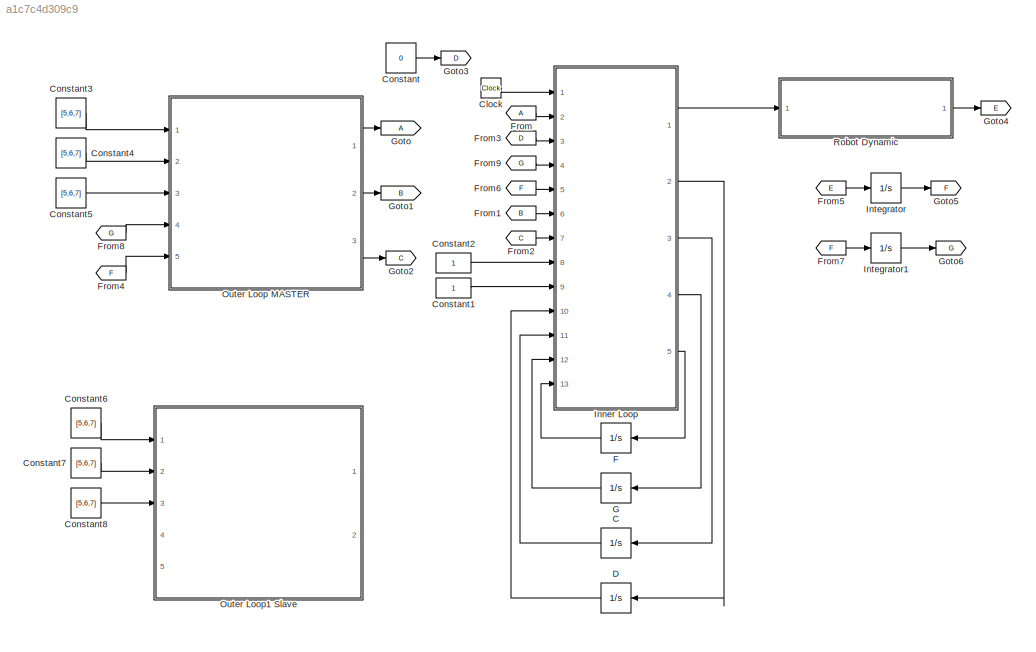
MODEL slx_a1c7c4d309c9
KIND model
CONFIG AbsTol = auto
CONFIG FixedStep = auto
CONFIG MaxStep = auto
CONFIG MinStep = auto
CONFIG RelTol = 1e-3
CONFIG SampleTimeConstraint = Unconstrained
CONFIG Solver = VariableStepAuto
CONFIG SolverMode = SingleTasking
CONFIG SolverName = VariableStepAuto
CONFIG StartTime = 0.0
CONFIG StopTime = 10.0
BLOCK [Integrator] C
  Ports = [1, 1]
BLOCK [Clock] Clock
BLOCK [Constant] Constant
  Value = 0
BLOCK [Constant] Constant1
BLOCK [Constant] Constant2
BLOCK [Constant] Constant3
  Value = [5,6,7]
BLOCK [Constant] Constant4
  Value = [5,6,7]
BLOCK [Constant] Constant5
  Value = [5,6,7]
BLOCK [Constant] Constant6
  Value = [5,6,7]
BLOCK [Constant] Constant7
  Value = [5,6,7]
BLOCK [Constant] Constant8
  Value = [5,6,7]
BLOCK [Integrator] D
  Ports = [1, 1]
BLOCK [Integrator] F
  Ports = [1, 1]
BLOCK [From] From
BLOCK [From] From1
  GotoTag = B
BLOCK [From] From2
  GotoTag = C
BLOCK [From] From3
  GotoTag = D
BLOCK [From] From4
  GotoTag = F
BLOCK [From] From5
  GotoTag = E
BLOCK [From] From6
  GotoTag = F
BLOCK [From] From7
  GotoTag = F
BLOCK [From] From8
  GotoTag = G
BLOCK [From] From9
  GotoTag = G
BLOCK [Integrator] G
  Ports = [1, 1]
BLOCK [Goto] Goto
BLOCK [Goto] Goto1
  GotoTag = B
BLOCK [Goto] Goto2
  GotoTag = C
BLOCK [Goto] Goto3
  GotoTag = D
BLOCK [Goto] Goto4
  GotoTag = E
BLOCK [Goto] Goto5
  GotoTag = F
BLOCK [Goto] Goto6
  GotoTag = G
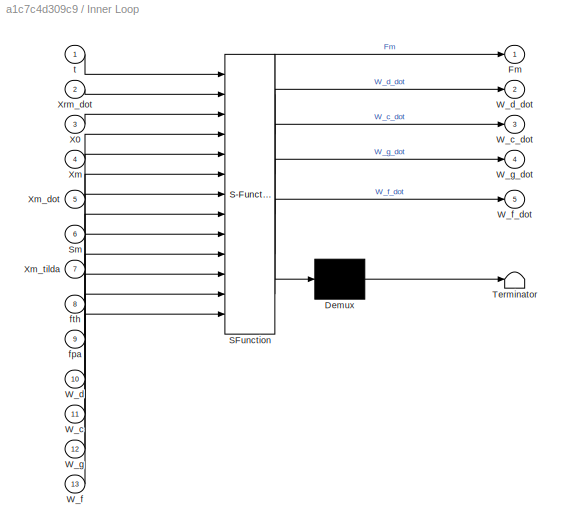
BLOCK [SubSystem] Inner Loop
  ErrorFcn = Stateflow.Translate.translate
  PermitHierarchicalResolution = ExplicitOnly
  Ports = [13, 5]
  RequestExecContextInheritance = off
  SFBlockType = MATLAB Function
  TreatAsAtomicUnit = on
  Variant = off
BLOCK [Demux] Inner Loop/ Demux 
  Outputs = 1
  Ports = [1, 1]
BLOCK [S-Function] Inner Loop/ SFunction 
  EnableBusSupport = off
  FunctionName = sf_sfun
  PortCounts = [13 6]
  Ports = [13, 6]
  SFunctionDeploymentMode = off
  Tag = Stateflow S-Function Simul 2
BLOCK [Terminator] Inner Loop/ Terminator 
BLOCK [Outport] Inner Loop/Fm
  IconDisplay = Port number
BLOCK [Inport] Inner Loop/Sm
  IconDisplay = Port number
  Port = 6
BLOCK [Inport] Inner Loop/W_c
  IconDisplay = Port number
  Port = 11
BLOCK [Outport] Inner Loop/W_c_dot
  IconDisplay = Port number
  Port = 3
BLOCK [Inport] Inner Loop/W_d
  IconDisplay = Port number
  Port = 10
BLOCK [Outport] Inner Loop/W_d_dot
  IconDisplay = Port number
  Port = 2
BLOCK [Inport] Inner Loop/W_f
  IconDisplay = Port number
  Port = 13
BLOCK [Outport] Inner Loop/W_f_dot
  IconDisplay = Port number
  Port = 5
BLOCK [Inport] Inner Loop/W_g
  IconDisplay = Port number
  Port = 12
BLOCK [Outport] Inner Loop/W_g_dot
  IconDisplay = Port number
  Port = 4
BLOCK [Inport] Inner Loop/X0
  IconDisplay = Port number
  Port = 3
BLOCK [Inport] Inner Loop/Xm
  IconDisplay = Port number
  Port = 4
BLOCK [Inport] Inner Loop/Xm_dot
  IconDisplay = Port number
  Port = 5
BLOCK [Inport] Inner Loop/Xm_tilda
  IconDisplay = Port number
  Port = 7
BLOCK [Inport] Inner Loop/Xrm_dot
  IconDisplay = Port number
  Port = 2
BLOCK [Inport] Inner Loop/fpa
  IconDisplay = Port number
  Port = 9
BLOCK [Inport] Inner Loop/fth
  IconDisplay = Port number
  Port = 8
BLOCK [Inport] Inner Loop/t
  IconDisplay = Port number
BLOCK [Integrator] Integrator
  Ports = [1, 1]
BLOCK [Integrator] Integrator1
  Ports = [1, 1]
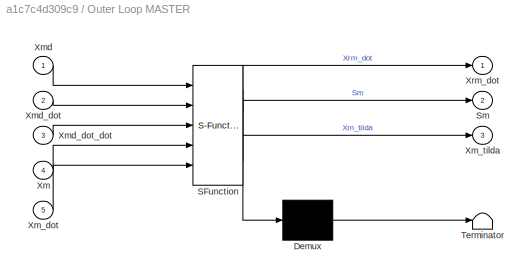
BLOCK [SubSystem] Outer Loop MASTER
  ErrorFcn = Stateflow.Translate.translate
  PermitHierarchicalResolution = ExplicitOnly
  Ports = [5, 3]
  RequestExecContextInheritance = off
  SFBlockType = MATLAB Function
  TreatAsAtomicUnit = on
  Variant = off
BLOCK [Demux] Outer Loop MASTER/ Demux 
  Outputs = 1
  Ports = [1, 1]
BLOCK [S-Function] Outer Loop MASTER/ SFunction 
  EnableBusSupport = off
  FunctionName = sf_sfun
  PortCounts = [5 4]
  Ports = [5, 4]
  SFunctionDeploymentMode = off
  Tag = Stateflow S-Function Simul 3
BLOCK [Terminator] Outer Loop MASTER/ Terminator 
BLOCK [Outport] Outer Loop MASTER/Sm
  IconDisplay = Port number
  Port = 2
BLOCK [Inport] Outer Loop MASTER/Xm
  IconDisplay = Port number
  Port = 4
BLOCK [Inport] Outer Loop MASTER/Xm_dot
  IconDisplay = Port number
  Port = 5
BLOCK [Outport] Outer Loop MASTER/Xm_tilda
  IconDisplay = Port number
  Port = 3
BLOCK [Inport] Outer Loop MASTER/Xmd
  IconDisplay = Port number
BLOCK [Inport] Outer Loop MASTER/Xmd_dot
  IconDisplay = Port number
  Port = 2
BLOCK [Inport] Outer Loop MASTER/Xmd_dot_dot
  IconDisplay = Port number
  Port = 3
BLOCK [Outport] Outer Loop MASTER/Xrm_dot
  IconDisplay = Port number
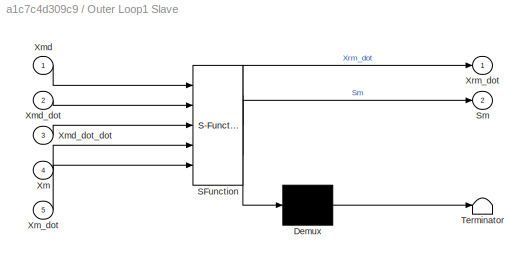
BLOCK [SubSystem] Outer Loop1 Slave
  ErrorFcn = Stateflow.Translate.translate
  PermitHierarchicalResolution = ExplicitOnly
  Ports = [5, 2]
  RequestExecContextInheritance = off
  SFBlockType = MATLAB Function
  TreatAsAtomicUnit = on
  Variant = off
BLOCK [Demux] Outer Loop1 Slave/ Demux 
  Outputs = 1
  Ports = [1, 1]
BLOCK [S-Function] Outer Loop1 Slave/ SFunction 
  EnableBusSupport = off
  FunctionName = sf_sfun
  PortCounts = [5 3]
  Ports = [5, 3]
  SFunctionDeploymentMode = off
  Tag = Stateflow S-Function Simul 4
BLOCK [Terminator] Outer Loop1 Slave/ Terminator 
BLOCK [Outport] Outer Loop1 Slave/Sm
  IconDisplay = Port number
  Port = 2
BLOCK [Inport] Outer Loop1 Slave/Xm
  IconDisplay = Port number
  Port = 4
BLOCK [Inport] Outer Loop1 Slave/Xm_dot
  IconDisplay = Port number
  Port = 5
BLOCK [Inport] Outer Loop1 Slave/Xmd
  IconDisplay = Port number
BLOCK [Inport] Outer Loop1 Slave/Xmd_dot
  IconDisplay = Port number
  Port = 2
BLOCK [Inport] Outer Loop1 Slave/Xmd_dot_dot
  IconDisplay = Port number
  Port = 3
BLOCK [Outport] Outer Loop1 Slave/Xrm_dot
  IconDisplay = Port number
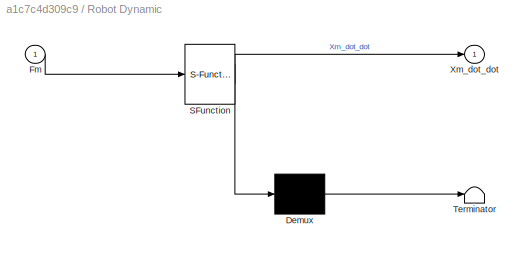
BLOCK [SubSystem] Robot Dynamic
  ErrorFcn = Stateflow.Translate.translate
  PermitHierarchicalResolution = ExplicitOnly
  Ports = [1, 1]
  RequestExecContextInheritance = off
  SFBlockType = MATLAB Function
  TreatAsAtomicUnit = on
  Variant = off
BLOCK [Demux] Robot Dynamic/ Demux 
  Outputs = 1
  Ports = [1, 1]
BLOCK [S-Function] Robot Dynamic/ SFunction 
  EnableBusSupport = off
  FunctionName = sf_sfun
  PortCounts = [1 2]
  Ports = [1, 2]
  SFunctionDeploymentMode = off
  Tag = Stateflow S-Function Simul 1
BLOCK [Terminator] Robot Dynamic/ Terminator 
BLOCK [Inport] Robot Dynamic/Fm
  IconDisplay = Port number
BLOCK [Outport] Robot Dynamic/Xm_dot_dot
  IconDisplay = Port number
LINE C:1 -> Inner Loop:11
LINE Clock:1 -> Inner Loop:1
LINE Constant1:1 -> Inner Loop:9
LINE Constant2:1 -> Inner Loop:8
LINE Constant3:1 -> Outer Loop MASTER:1
LINE Constant4:1 -> Outer Loop MASTER:2
LINE Constant5:1 -> Outer Loop MASTER:3
LINE Constant6:1 -> Outer Loop1 Slave:1
LINE Constant7:1 -> Outer Loop1 Slave:2
LINE Constant8:1 -> Outer Loop1 Slave:3
LINE Constant:1 -> Goto3:1
LINE D:1 -> Inner Loop:10
LINE F:1 -> Inner Loop:13
LINE From1:1 -> Inner Loop:6
LINE From2:1 -> Inner Loop:7
LINE From3:1 -> Inner Loop:3
LINE From4:1 -> Outer Loop MASTER:5
LINE From5:1 -> Integrator:1
LINE From6:1 -> Inner Loop:5
LINE From7:1 -> Integrator1:1
LINE From8:1 -> Outer Loop MASTER:4
LINE From9:1 -> Inner Loop:4
LINE From:1 -> Inner Loop:2
LINE G:1 -> Inner Loop:12
LINE Inner Loop:1 -> Robot Dynamic:1
LINE Inner Loop:2 -> D:1
LINE Inner Loop:3 -> C:1
LINE Inner Loop:4 -> G:1
LINE Inner Loop:5 -> F:1
LINE Integrator1:1 -> Goto6:1
LINE Integrator:1 -> Goto5:1
LINE Outer Loop MASTER:1 -> Goto:1
LINE Outer Loop MASTER:2 -> Goto1:1
LINE Outer Loop MASTER:3 -> Goto2:1
LINE Robot Dynamic:1 -> Goto4:1
CHART Robot Dynamic states=1 transitions=1
  STATE_LABEL 'eML_blk_kernel()'
  STATE_LABEL 'SCRIPT:\nfunction Xm_dot_dot = fcn(Fm)\n\nXm_dot_dot = Fm;\n'
CHART Inner Loop states=1 transitions=1
  STATE_LABEL 'eML_blk_kernel()'
  STATE_LABEL "SCRIPT:\nfunction [Fm, W_d_dot, W_c_dot, W_g_dot, W_f_dot]= fcn(t, Xrm_dot, X0, Xm, Xm_dot, Sm, Xm_tilda, fth, fpa, W_d, W_c, W_g, W_f)\n\nfn = 50;\nKf = 0.5;\nMm = 1;\nlambda3m = 2;\nXm_tilda = Xmod - Xm;\n\nzz = [1;sin(fn*t);sin(2*fn*t)];\n\nZd = [zz, zeros(6, 1); zeros(3, 1), zz, zeros(3, 1); zeros(6, 1), zz];\nZc = Zd;\nZg = zz;\nZf = zz;\n\nD_hat = W_d' * Zd;\nC_hat = W_c' * Zc;\ng_hat = W_g' * Zg;\nf_hat = W_f...<+381ch>"
CHART Outer Loop MASTER states=1 transitions=1
  STATE_LABEL 'eML_blk_kernel()'
  STATE_LABEL 'SCRIPT:\nfunction [Xrm_dot, Sm, Xm_tilda] = fcn(Xmd, Xmd_dot, Xmd_dot_dot, Xm, Xm_dot)\nl1 = 1;\nXrm_dot = Xmd_dot - l1 * (Xm - Xmd);\nSm = Xm_dot - Xrm_dot;\nXm_tilda = Xmd-Xm;\n'
CHART Outer Loop1 Slave states=1 transitions=1
  STATE_LABEL 'eML_blk_kernel()'
  STATE_LABEL 'SCRIPT:\nfunction [Xrm_dot, Sm] = fcn(Xmd, Xmd_dot, Xmd_dot_dot, Xm, Xm_dot)\nl1 = 1;\nXrm_dot = Xmd_dot - l1 * (Xm - Xmd);\nSm = Xm_dot - Xrm_dot;\n'
